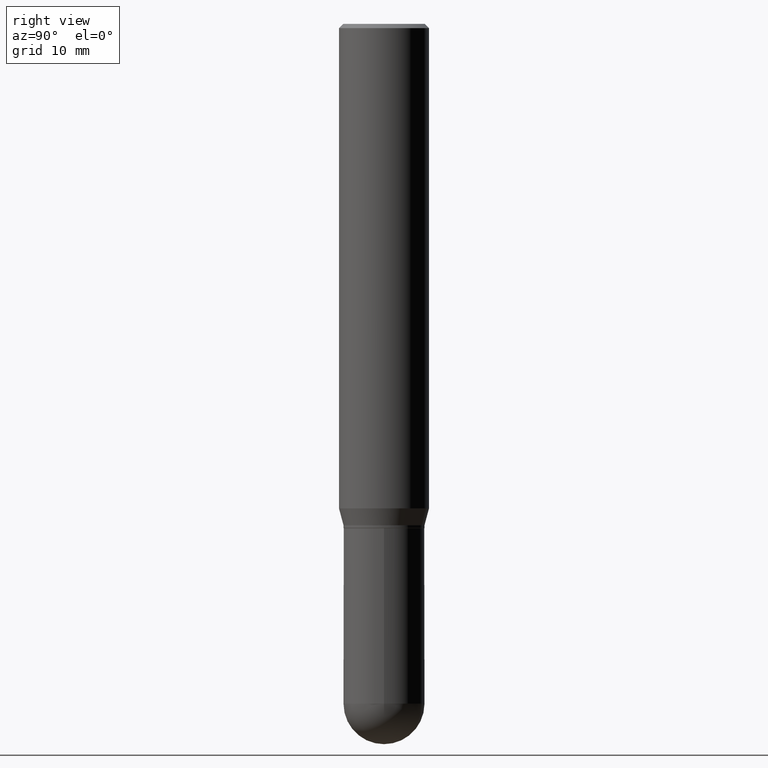
[diagram: clean part render]
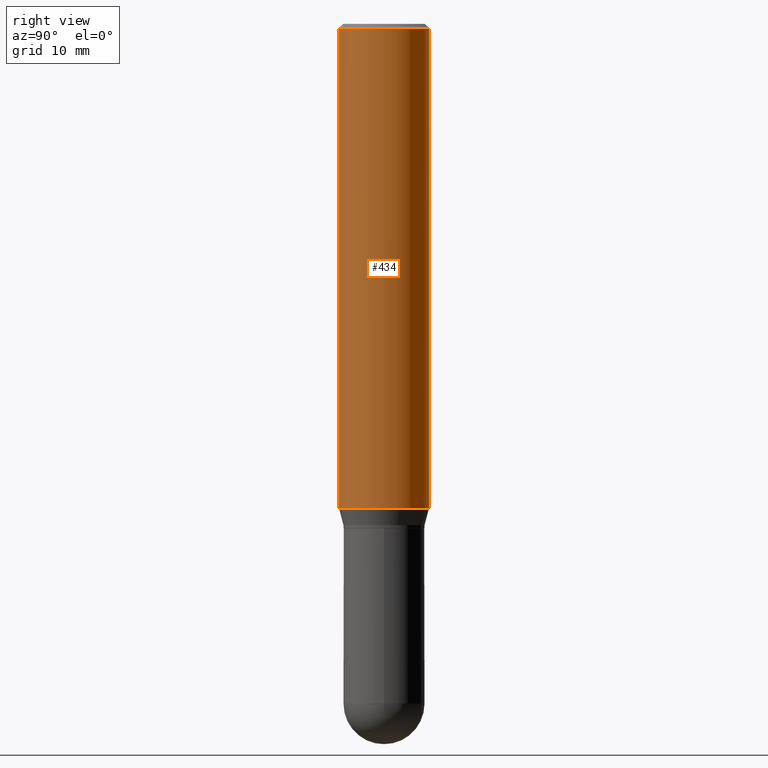
[diagram: same view with one face highlighted and labeled with its STEP entity id]
A machine part, right view. The second image highlights one B-rep face of the part: STEP entity #434.
In plain terms, the highlighted cylindrical surface (partial cylindrical patch) has radius 3.9688 mm, axis along (-0, 0, 1).
Its self-contained STEP definition (entity closure, byte-faithful):
#3 = DIRECTION ( 'NONE',  ( -2.445665582166115996E-29, 3.491199544438589874E-15, 1.000000000000000000 ) ) ;
#12 = CARTESIAN_POINT ( 'NONE',  ( 1.110223024625197561E-15, 0.1562499999999941436, -1.681593404861547514 ) ) ;
#32 = AXIS2_PLACEMENT_3D ( 'NONE', #307, #115, #265 ) ;
#50 = DIRECTION ( 'NONE',  ( -2.445665582166115716E-29, 3.491199544438589874E-15, 1.000000000000000000 ) ) ;
#51 = CYLINDRICAL_SURFACE ( 'NONE', #32, 0.1562500000000000000 ) ;
#68 = EDGE_CURVE ( 'NONE', #431, #162, #496, .T. ) ;
#79 = CIRCLE ( 'NONE', #326, 0.1562500000000000000 ) ;
#95 = VECTOR ( 'NONE', #50, 39.37007874015748143 ) ;
#105 = DIRECTION ( 'NONE',  ( -2.445665582166115716E-29, 3.491199544438589874E-15, 1.000000000000000000 ) ) ;
#108 = CARTESIAN_POINT ( 'NONE',  ( -1.091087918388478976E-15, -0.1562500000000000000, 5.454999288185296309E-16 ) ) ;
#115 = DIRECTION ( 'NONE',  ( -2.445665582166115996E-29, 3.491199544438589874E-15, 1.000000000000000000 ) ) ;
#122 = DIRECTION ( 'NONE',  ( -6.982962677686265133E-15, -1.000000000000000000, 3.496765431890256920E-15 ) ) ;
#154 = EDGE_LOOP ( 'NONE', ( #246, #273, #299, #506 ) ) ;
#161 = DIRECTION ( 'NONE',  ( -2.445665582166115996E-29, 3.491199544438589874E-15, 1.000000000000000000 ) ) ;
#162 = VERTEX_POINT ( 'NONE', #171 ) ;
#171 = CARTESIAN_POINT ( 'NONE',  ( -1.091087918388478779E-15, -0.1562500000000000833, -0.01499999999999947035 ) ) ;
#195 = CIRCLE ( 'NONE', #202, 0.1562500000000000000 ) ;
#202 = AXIS2_PLACEMENT_3D ( 'NONE', #327, #161, #323 ) ;
#229 = VERTEX_POINT ( 'NONE', #12 ) ;
#246 = ORIENTED_EDGE ( 'NONE', *, *, #443, .T. ) ;
#265 = DIRECTION ( 'NONE',  ( -6.982962677686265133E-15, -1.000000000000000000, 3.491199544438589480E-15 ) ) ;
#271 = EDGE_CURVE ( 'NONE', #229, #280, #404, .T. ) ;
#273 = ORIENTED_EDGE ( 'NONE', *, *, #271, .T. ) ;
#280 = VERTEX_POINT ( 'NONE', #449 ) ;
#291 = CARTESIAN_POINT ( 'NONE',  ( 1.110223024625156343E-15, 0.1562500000000000000, -5.454999288185296309E-16 ) ) ;
#293 = FACE_OUTER_BOUND ( 'NONE', #154, .T. ) ;
#297 = CARTESIAN_POINT ( 'NONE',  ( 4.112615113467415944E-29, -5.870778128983569149E-15, -1.681593404861546848 ) ) ;
#299 = ORIENTED_EDGE ( 'NONE', *, *, #509, .F. ) ;
#307 = CARTESIAN_POINT ( 'NONE',  ( 0.000000000000000000, 0.000000000000000000, 0.000000000000000000 ) ) ;
#323 = DIRECTION ( 'NONE',  ( -6.982962677686265133E-15, -1.000000000000000000, 3.496765431890256920E-15 ) ) ;
#326 = AXIS2_PLACEMENT_3D ( 'NONE', #297, #3, #122 ) ;
#327 = CARTESIAN_POINT ( 'NONE',  ( 3.668498373249178251E-31, -5.236799316657890950E-17, -0.01500000000000001679 ) ) ;
#404 = LINE ( 'NONE', #291, #95 ) ;
#407 = CARTESIAN_POINT ( 'NONE',  ( -1.091087918388437956E-15, -0.1562500000000058842, -1.681593404861546404 ) ) ;
#431 = VERTEX_POINT ( 'NONE', #407 ) ;
#434 = ADVANCED_FACE ( 'NONE', ( #293 ), #51, .T. ) ;
#435 = VECTOR ( 'NONE', #105, 39.37007874015748143 ) ;
#443 = EDGE_CURVE ( 'NONE', #431, #229, #79, .T. ) ;
#449 = CARTESIAN_POINT ( 'NONE',  ( 1.110223024625197561E-15, 0.1562499999999999445, -0.01500000000000056323 ) ) ;
#496 = LINE ( 'NONE', #108, #435 ) ;
#506 = ORIENTED_EDGE ( 'NONE', *, *, #68, .F. ) ;
#509 = EDGE_CURVE ( 'NONE', #162, #280, #195, .T. ) ;